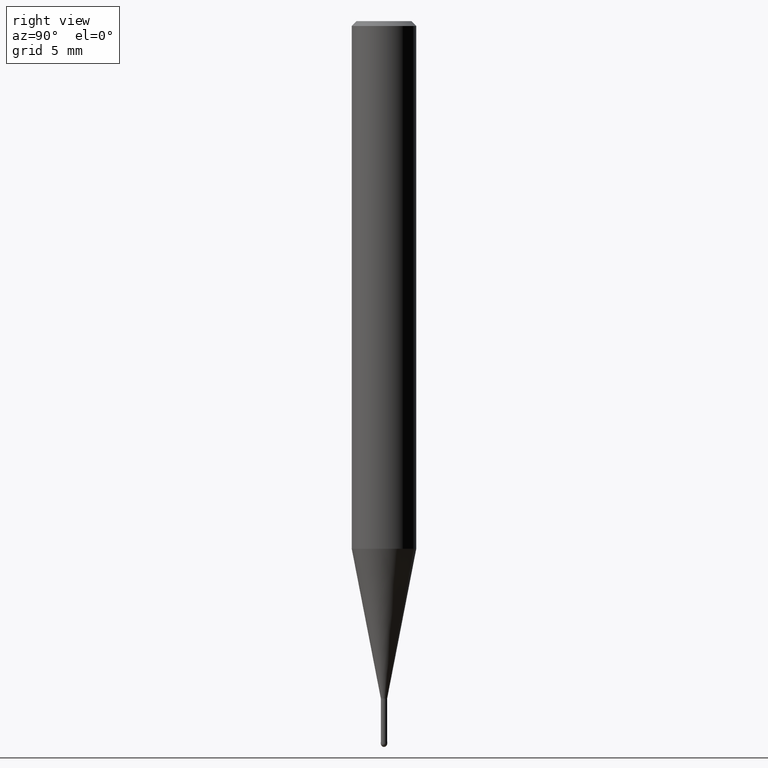
[diagram: clean part render]
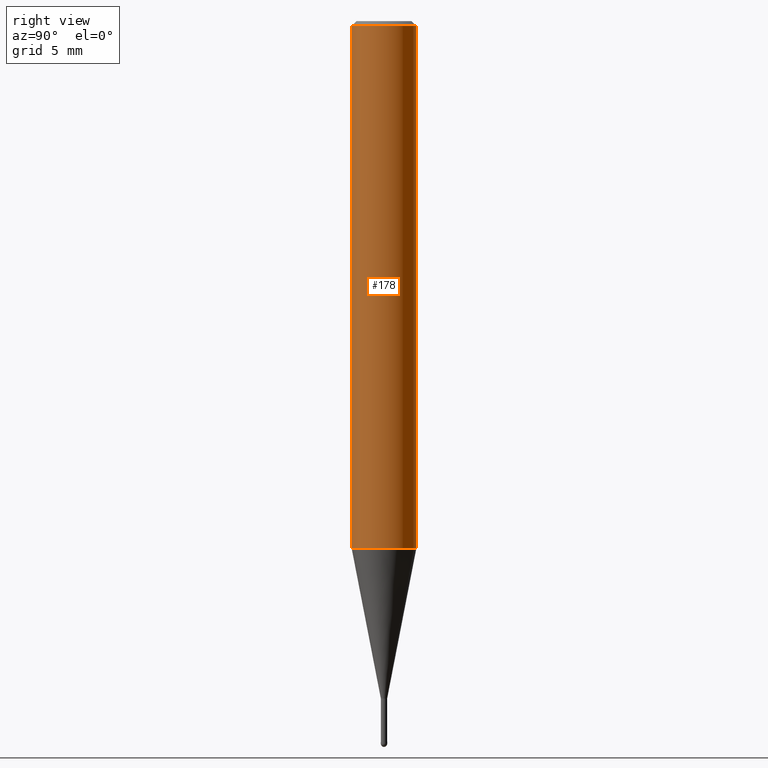
[diagram: same view with one face highlighted and labeled with its STEP entity id]
A machine part, right view. The second image highlights one B-rep face of the part: STEP entity #178.
In plain terms, the highlighted cylindrical surface (edge-blend (fillet) strip) has radius 2 mm, axis along (-0, -0, 1).
Its self-contained STEP definition (entity closure, byte-faithful):
#128=EDGE_CURVE('',#142,#158,#272,.T.);
#134=EDGE_CURVE('',#164,#136,#279,.T.);
#136=VERTEX_POINT('',#281);
#142=VERTEX_POINT('',#288);
#158=VERTEX_POINT('',#307);
#164=VERTEX_POINT('',#313);
#178=ADVANCED_FACE('',(#330),#331,.T.);
#182=EDGE_CURVE('',#136,#158,#335,.T.);
#198=EDGE_CURVE('',#142,#164,#355,.T.);
#272=CIRCLE('',#433,2.0);
#279=CIRCLE('',#441,2.0);
#281=CARTESIAN_POINT('',(2.44921270764475E-016,-2.0,-32.714));
#288=CARTESIAN_POINT('',(0.0,2.0,-0.299999999999997));
#307=CARTESIAN_POINT('',(2.44921270764475E-016,-2.0,-0.299999999999997));
#313=CARTESIAN_POINT('',(0.0,2.0,-32.714));
#330=FACE_OUTER_BOUND('',#504,.T.);
#331=CYLINDRICAL_SURFACE('',#505,2.0);
#335=LINE('',#510,#511);
#355=LINE('',#532,#533);
#433=AXIS2_PLACEMENT_3D('',#588,#589,#590);
#441=AXIS2_PLACEMENT_3D('',#599,#600,#601);
#504=EDGE_LOOP('',(#674,#675,#676,#677));
#505=AXIS2_PLACEMENT_3D('',#678,#679,#680);
#510=CARTESIAN_POINT('',(2.44921270764475E-016,-2.0,-16.507));
#511=VECTOR('',#681,1.0);
#532=CARTESIAN_POINT('',(-2.44921270764475E-016,2.0,-16.507));
#533=VECTOR('',#710,1.0);
#588=CARTESIAN_POINT('',(0.0,0.0,-0.299999999999997));
#589=DIRECTION('',(0.0,0.0,-1.0));
#590=DIRECTION('',(0.0,1.0,0.0));
#599=CARTESIAN_POINT('',(0.0,0.0,-32.714));
#600=DIRECTION('',(0.0,0.0,-1.0));
#601=DIRECTION('',(0.0,1.0,0.0));
#674=ORIENTED_EDGE('',*,*,#198,.F.);
#675=ORIENTED_EDGE('',*,*,#128,.T.);
#676=ORIENTED_EDGE('',*,*,#182,.F.);
#677=ORIENTED_EDGE('',*,*,#134,.F.);
#678=CARTESIAN_POINT('',(0.0,0.0,-16.507));
#679=DIRECTION('',(-0.0,-0.0,1.0));
#680=DIRECTION('',(0.0,1.0,0.0));
#681=DIRECTION('',(-0.0,-0.0,1.0));
#710=DIRECTION('',(0.0,0.0,-1.0));